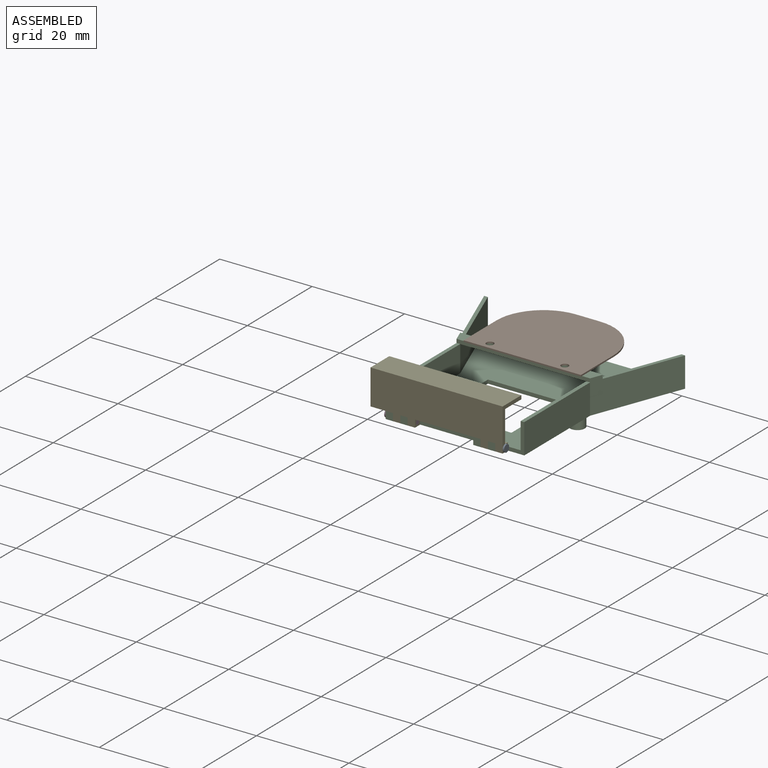
[diagram: assembled view]
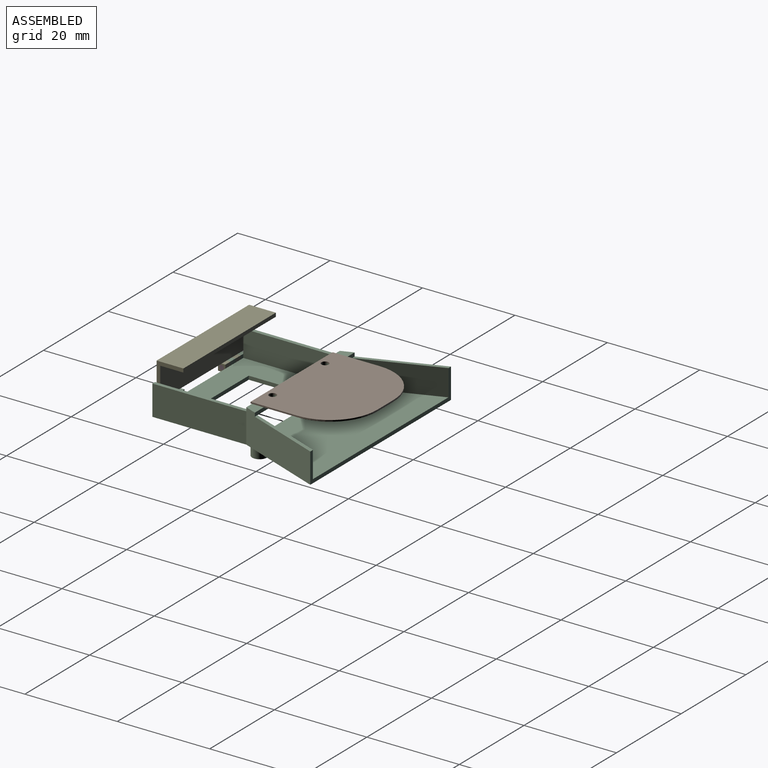
[diagram: assembled view, second angle]
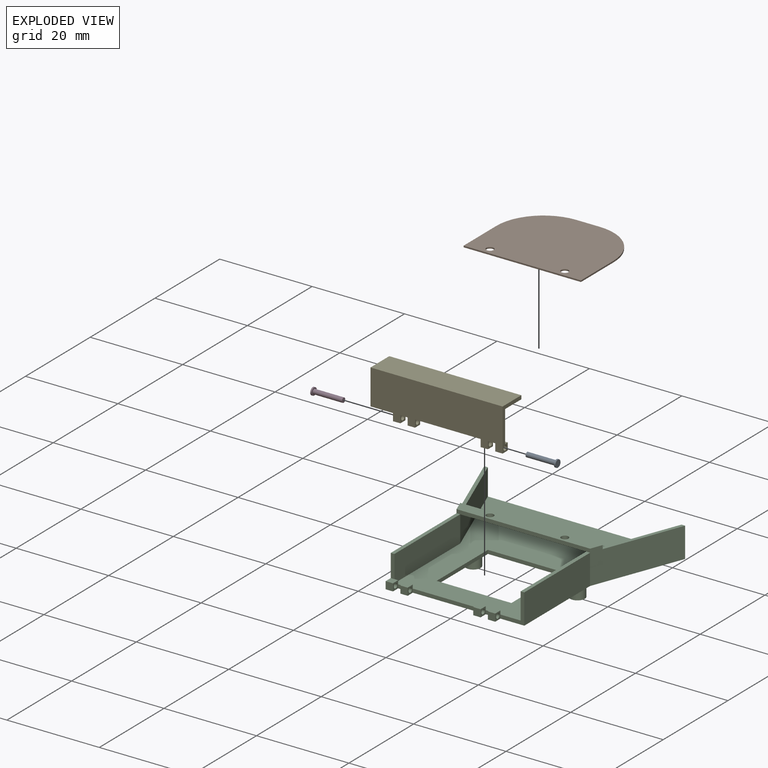
[diagram: exploded view]
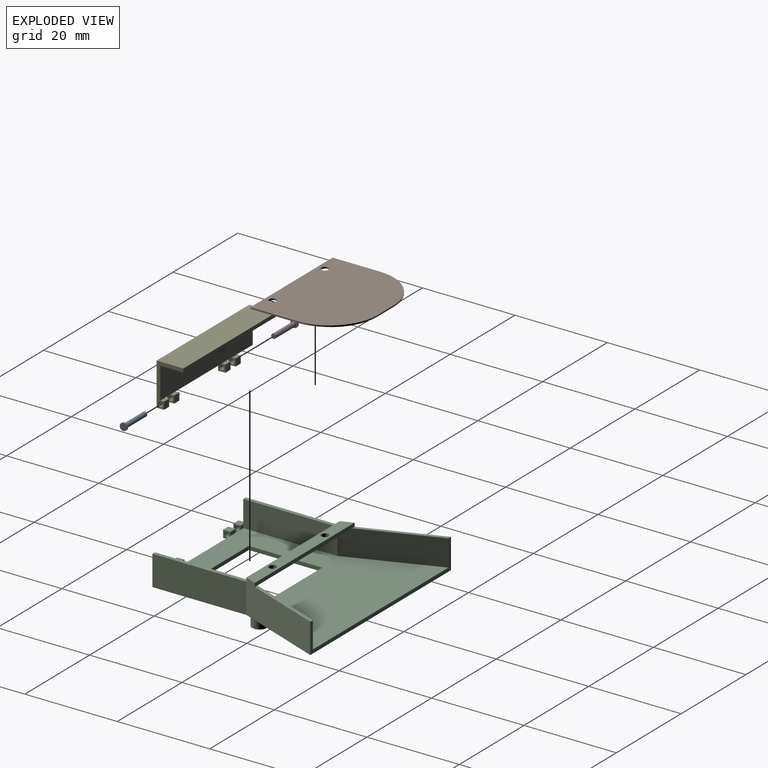
[diagram: exploded view, second angle]
ASSEMBLY  parts=5 mates=4
PART A: 5 faces, bbox 1.6x1.6x6.7 mm
  f0: cylinder r=0.5mm len=6.35mm, axis (0,0,-1), area 19.9mm2, adj f1,f4
  f1: plane 1x1mm, normal (0,0,-1), area 0.8mm2, adj f0
  f2: cylinder r=0.79mm len=1.59mm, axis (0,0,-1), area 1.6mm2, adj f3,f4
  f3: plane 1.59x1.59mm, normal (0,0,1), area 2mm2, adj f2
  f4: plane 1.59x1.59mm, normal (0,0,-1), area 1.2mm2, adj f0,f2
PART B: 10 faces, bbox 25.4x20.3x0.3 mm
  f0: cylinder r=10.16mm len=10.16mm, axis (0,0,-1), area 5.1mm2, adj f1,f7,f8,f9
  f1: plane 10.16x0.32mm, normal (-1,0,0), area 3.2mm2, adj f0,f2,f8,f9
  f2: plane 25.4x0.32mm, normal (0,-1,0), area 8.1mm2, adj f1,f3,f8,f9
  f3: plane 10.16x0.32mm, normal (1,0,0), area 3.2mm2, adj f2,f4,f8,f9
  f4: cylinder r=10.16mm len=10.16mm, axis (0,0,-1), area 5.1mm2, adj f3,f7,f8,f9
  f5: cylinder r=0.79mm len=1.59mm, axis (0,0,-1), area 1.6mm2, adj f8,f9
  f6: cylinder r=0.79mm len=1.59mm, axis (0,0,-1), area 1.6mm2, adj f8,f9
  f7: plane 5.08x0.32mm, normal (0,1,0), area 1.6mm2, adj f0,f4,f8,f9
  f8: plane 25.4x20.32mm, normal (0,0,1), area 467.9mm2, adj f0,f1,f2,f3,f4,f5,f6,f7
  f9: plane 25.4x20.32mm, normal (0,0,-1), area 467.9mm2, adj f0,f1,f2,f3,f4,f5,f6,f7
PART C: 57 faces, bbox 43.5x40.9x10.5 mm
  f0: plane 1.59x1.59mm, normal (0,-1,0), area 2.5mm2, adj f12,f33,f41,f48
  f1: plane 1.59x1.59mm, normal (0,-1,0), area 2.5mm2, adj f34,f35,f43,f48
  f2: plane 1.59x1.59mm, normal (0,-1,0), area 2.5mm2, adj f36,f37,f47,f48
  f3: plane 1.59x1.59mm, normal (0,-1,0), area 2.5mm2, adj f38,f39,f45,f48
  f4: plane 41.91x39.28mm, normal (0,0,1), area 954mm2, adj f6,f7,f8,f13,f16,f17,f18,f19
  f5: plane 4.92x0.79mm, normal (0,-1,0), area 3.9mm2, adj f12,f21,f23,f41
  f6: plane 14.19x0.79mm, normal (0,-1,0), area 11.3mm2, adj f4,f35,f39,f48
  f7: plane 1.59x0.79mm, normal (0,-1,0), area 1.3mm2, adj f4,f37,f38,f48
  f8: plane 1.59x0.79mm, normal (0,-1,0), area 1.3mm2, adj f4,f33,f34,f48
  f9: plane 16.42x7.12mm, normal (0,0,1), area 13mm2, adj f11,f20,f22,f28
  f10: plane 16.42x7.12mm, normal (0,0,1), area 13mm2, adj f15,f20,f24,f28
  f11: plane 18.96x7.3mm, normal (-0.93,-0.36,0), area 134.4mm2, adj f9,f12,f20,f28,f29,f30,f48
  f12: plane 21.91x6.51mm, normal (-1,0,0), area 134mm2, adj f0,f5,f11,f23,f41,f48,f52
  f13: plane 6.51x5.18mm, normal (0,-1,0), area 8.6mm2, adj f4,f14,f25,f26,f36,f48
  f14: plane 20.32x6.51mm, normal (1,0,0), area 132.3mm2, adj f13,f15,f26,f48
  f15: plane 18.96x7.3mm, normal (0.93,-0.36,0), area 134.4mm2, adj f10,f14,f20,f28,f29,f30,f48
  f16: plane 15.88x0.79mm, normal (1,0,0), area 12.6mm2, adj f4,f17,f19,f48
  f17: plane 16.19x0.79mm, normal (0,-1,0), area 12.9mm2, adj f4,f16,f18,f48
  f18: plane 15.88x0.79mm, normal (-1,0,0), area 12.6mm2, adj f4,f17,f19,f48
  f19: plane 16.19x0.79mm, normal (0,1,0), area 12.9mm2, adj f4,f16,f18,f48
  f20: plane 43.5x6.51mm, normal (0,1,0), area 43.6mm2, adj f4,f9,f10,f11,f15,f22,f24,f48
  f21: plane 20.32x5.72mm, normal (1,0,0), area 116.1mm2, adj f4,f5,f22,f23,f40
  f22: plane 18.96x7.3mm, normal (0.93,0.36,0), area 116.1mm2, adj f4,f9,f20,f21,f27
  f23: plane 20.32x0.79mm, normal (0,0,1), area 16.1mm2, adj f5,f12,f21,f29
  f24: plane 18.96x7.3mm, normal (-0.93,0.36,0), area 116.1mm2, adj f4,f10,f20,f25,f27
  f25: plane 20.32x5.72mm, normal (-1,0,0), area 116.1mm2, adj f4,f13,f24,f26
  f26: plane 20.32x0.79mm, normal (0,0,1), area 16.1mm2, adj f13,f14,f25,f29
  f27: plane 29.26x2.54mm, normal (0,0,-1), area 67.9mm2, adj f22,f24,f28,f29,f31,f32
  f28: plane 30.85x0.79mm, normal (0,1,0), area 24.5mm2, adj f9,f10,f11,f15,f27,f30
  f29: plane 28.89x0.79mm, normal (0,-1,0), area 22.9mm2, adj f11,f15,f23,f26,f27,f30
  f30: plane 30.85x2.54mm, normal (0,0,1), area 71.9mm2, adj f11,f15,f28,f29,f31,f32
  f31: cylinder r=0.79mm len=1.59mm, axis (0,0,1), area 4mm2, adj f27,f30
  f32: cylinder r=0.79mm len=1.59mm, axis (0,0,1), area 4mm2, adj f27,f30
  f33: plane 1.59x1.59mm, normal (1,0,0), area 1.7mm2, adj f0,f8,f40,f41,f48,f52
  f34: plane 1.59x1.59mm, normal (-1,0,0), area 1.7mm2, adj f1,f8,f42,f43,f48,f51
  f35: plane 1.59x1.59mm, normal (1,0,0), area 1.7mm2, adj f1,f6,f42,f43,f48,f51
  f36: plane 1.59x1.59mm, normal (1,0,0), area 1.7mm2, adj f2,f13,f46,f47,f48,f50
  f37: plane 1.59x1.59mm, normal (-1,0,0), area 1.7mm2, adj f2,f7,f46,f47,f48,f50
  f38: plane 1.59x1.59mm, normal (1,0,0), area 1.7mm2, adj f3,f7,f44,f45,f48,f49
  f39: plane 1.59x1.59mm, normal (-1,0,0), area 1.7mm2, adj f3,f6,f44,f45,f48,f49
  f40: plane 0.79x0.79mm, normal (0,1,0), area 0.6mm2, adj f4,f21,f33,f41
  f41: plane 1.59x1.59mm, normal (0,0,1), area 2.5mm2, adj f0,f5,f12,f33,f40
  f42: plane 1.59x0.79mm, normal (0,1,0), area 1.3mm2, adj f4,f34,f35,f43
  f43: plane 1.59x1.59mm, normal (0,0,1), area 2.5mm2, adj f1,f34,f35,f42
  f44: plane 1.59x0.79mm, normal (0,1,0), area 1.3mm2, adj f4,f38,f39,f45
  f45: plane 1.59x1.59mm, normal (0,0,1), area 2.5mm2, adj f3,f38,f39,f44
  f46: plane 1.59x0.79mm, normal (0,1,0), area 1.3mm2, adj f4,f36,f37,f47
  f47: plane 1.59x1.59mm, normal (0,0,1), area 2.5mm2, adj f2,f36,f37,f46
  f48: plane 43.5x40.87mm, normal (0,0,-1), area 1010.6mm2, adj f0,f1,f2,f3,f6,f7,f8,f11
  f49: cylinder r=0.5mm len=1.59mm, axis (-1,0,0), area 5mm2, adj f38,f39
  f50: cylinder r=0.5mm len=1.59mm, axis (-1,0,0), area 5mm2, adj f36,f37
  f51: cylinder r=0.5mm len=1.59mm, axis (-1,0,0), area 5mm2, adj f34,f35
  f52: cylinder r=0.5mm len=1.59mm, axis (-1,0,0), area 5mm2, adj f12,f33
  f53: cylinder r=1.59mm len=3.18mm, axis (0,0,1), area 31.7mm2, adj f48,f54
  f54: plane 3.18x3.18mm, normal (0,0,-1), area 7.9mm2, adj f53
  f55: cylinder r=1.59mm len=3.18mm, axis (0,0,1), area 31.7mm2, adj f48,f56
  f56: plane 3.18x3.18mm, normal (0,0,-1), area 7.9mm2, adj f55
PART D: same geometry as A
PART E: 34 faces, bbox 28.6x9.2x5.8 mm
  f0: plane 4.86x0.79mm, normal (0,1,0), area 3.9mm2, adj f4,f5,f8,f20
  f1: plane 1.59x0.79mm, normal (0,1,0), area 1.3mm2, adj f4,f8,f17,f19
  f2: plane 14.19x0.79mm, normal (0,1,0), area 11.3mm2, adj f4,f8,f14,f16
  f3: plane 1.59x0.79mm, normal (0,1,0), area 1.3mm2, adj f4,f8,f11,f13
  f4: plane 28.58x6.83mm, normal (0,0,1), area 195.1mm2, adj f0,f1,f2,f3,f5,f7,f9,f22
  f5: plane 7.62x5.79mm, normal (-1,0,0), area 10mm2, adj f0,f4,f6,f8,f9,f10
  f6: plane 28.58x5.79mm, normal (0,-1,0), area 165.5mm2, adj f5,f7,f8,f10
  f7: plane 9.21x5.79mm, normal (1,0,0), area 11.8mm2, adj f4,f6,f8,f9,f10,f12,f28,f29
  f8: plane 28.58x9.21mm, normal (0,0,-1), area 227.8mm2, adj f0,f1,f2,f3,f5,f6,f7,f11
  f9: plane 28.58x5mm, normal (0,1,0), area 142.8mm2, adj f4,f5,f7,f10
  f10: plane 28.58x0.79mm, normal (0,0,1), area 22.7mm2, adj f5,f6,f7,f9
  f11: plane 1.59x1.59mm, normal (-1,0,0), area 1.7mm2, adj f3,f8,f12,f28,f29,f33
  f12: plane 1.59x1.59mm, normal (0,1,0), area 2.5mm2, adj f7,f8,f11,f29
  f13: plane 1.59x1.59mm, normal (1,0,0), area 1.7mm2, adj f3,f8,f15,f26,f27,f32
  f14: plane 1.59x1.59mm, normal (-1,0,0), area 1.7mm2, adj f2,f8,f15,f26,f27,f32
  f15: plane 1.59x1.59mm, normal (0,1,0), area 2.5mm2, adj f8,f13,f14,f27
  f16: plane 1.59x1.59mm, normal (1,0,0), area 1.7mm2, adj f2,f8,f18,f24,f25,f31
  f17: plane 1.59x1.59mm, normal (-1,0,0), area 1.7mm2, adj f1,f8,f18,f24,f25,f31
  f18: plane 1.59x1.59mm, normal (0,1,0), area 2.5mm2, adj f8,f16,f17,f25
  f19: plane 1.59x1.59mm, normal (1,0,0), area 1.7mm2, adj f1,f8,f21,f22,f23,f30
  f20: plane 1.59x1.59mm, normal (-1,0,0), area 1.7mm2, adj f0,f8,f21,f22,f23,f30
  f21: plane 1.59x1.59mm, normal (0,1,0), area 2.5mm2, adj f8,f19,f20,f23
  f22: plane 1.59x0.79mm, normal (0,-1,0), area 1.3mm2, adj f4,f19,f20,f23
  f23: plane 1.59x1.59mm, normal (0,0,1), area 2.5mm2, adj f19,f20,f21,f22
  f24: plane 1.59x0.79mm, normal (0,-1,0), area 1.3mm2, adj f4,f16,f17,f25
  f25: plane 1.59x1.59mm, normal (0,0,1), area 2.5mm2, adj f16,f17,f18,f24
  f26: plane 1.59x0.79mm, normal (0,-1,0), area 1.3mm2, adj f4,f13,f14,f27
  f27: plane 1.59x1.59mm, normal (0,0,1), area 2.5mm2, adj f13,f14,f15,f26
  f28: plane 1.59x0.79mm, normal (0,-1,0), area 1.3mm2, adj f4,f7,f11,f29
  f29: plane 1.59x1.59mm, normal (0,0,1), area 2.5mm2, adj f7,f11,f12,f28
  f30: cylinder r=0.5mm len=1.59mm, axis (1,0,0), area 5mm2, adj f19,f20
  f31: cylinder r=0.5mm len=1.59mm, axis (1,0,0), area 5mm2, adj f16,f17
  f32: cylinder r=0.5mm len=1.59mm, axis (1,0,0), area 5mm2, adj f13,f14
  f33: cylinder r=0.5mm len=1.59mm, axis (1,0,0), area 5mm2, adj f7,f11
PLACE A rot(axis=(0,1,0),90deg) t=(7.54,-2.97,17.74)mm
PLACE B t=(4.46,27.9,26.11)mm
PLACE C t=(6.95,-9.26,19.29)mm fixed
PLACE D rot(axis=(0,-1,0),90deg) t=(-5.07,-2.97,21.47)mm
PLACE E rot(axis=(-1,0,0),90deg) t=(-5.34,-3.76,32.7)mm
MATE revolute A.f0 <-> C.f49  axis (-1,0,0) through (7.54,-2.97,19.61)mm
MATE revolute E.f30 <-> A.f0  axis (1,0,0) through (13.89,-2.97,19.61)mm
MATE fastened C.f32 <-> B.f5  axis (0,0,1) through (-5.07,19.41,26.11)mm
MATE fastened A.f0 <-> E.f30  axis (-1,0,0) through (13.89,-2.97,19.61)mm
